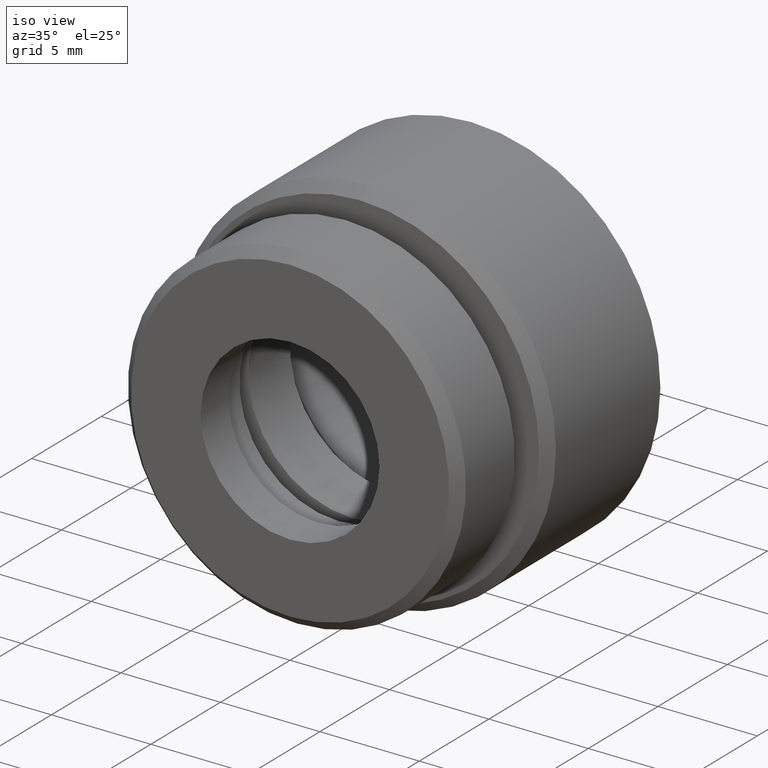
[diagram: clean part render]
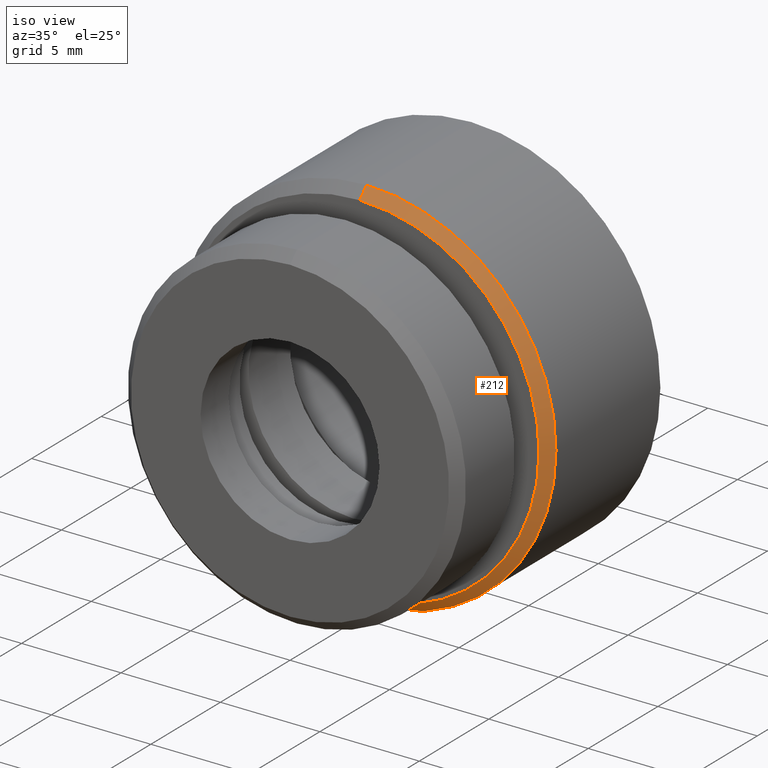
[diagram: same view with one face highlighted and labeled with its STEP entity id]
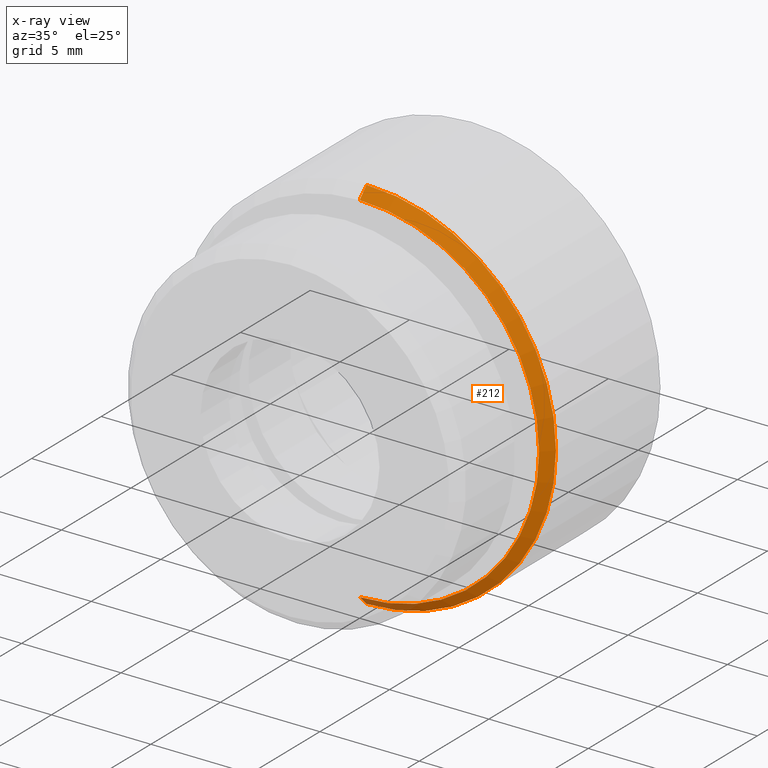
[diagram: x-ray of the same camera — body ghosted, the highlighted face saturated]
A machine part, iso view. The second image highlights one B-rep face of the part: STEP entity #212.
The next image is the same camera in x-ray: the body ghosted, the highlighted face saturated — about 3% of this face is hidden behind the body in this view.
In plain terms, the highlighted conical surface has half-angle 45 deg.
Its self-contained STEP definition (entity closure, byte-faithful):
#48 = AXIS2_PLACEMENT_3D ( 'NONE', #568, #593, #903 ) ;
#133 = ORIENTED_EDGE ( 'NONE', *, *, #234, .F. ) ;
#147 = EDGE_CURVE ( 'NONE', #681, #757, #1087, .T. ) ;
#150 = CARTESIAN_POINT ( 'NONE',  ( 0.0000000000000000000, 5.499999999999999100, 9.525000000000000400 ) ) ;
#212 = ADVANCED_FACE ( 'NONE', ( #444 ), #818, .T. ) ;
#234 = EDGE_CURVE ( 'NONE', #825, #1023, #791, .T. ) ;
#255 = ORIENTED_EDGE ( 'NONE', *, *, #349, .T. ) ;
#272 = EDGE_CURVE ( 'NONE', #681, #825, #740, .T. ) ;
#317 = CARTESIAN_POINT ( 'NONE',  ( 0.0000000000000000000, 5.000000000000000900, 0.0000000000000000000 ) ) ;
#349 = EDGE_CURVE ( 'NONE', #757, #1023, #413, .T. ) ;
#368 = DIRECTION ( 'NONE',  ( 8.659560562354955000E-017, 0.7071067811865456900, -0.7071067811865493500 ) ) ;
#413 = CIRCLE ( 'NONE', #938, 9.525000000000000400 ) ;
#416 = CARTESIAN_POINT ( 'NONE',  ( 0.0000000000000000000, 5.499999999999999100, 0.0000000000000000000 ) ) ;
#419 = DIRECTION ( 'NONE',  ( -0.0000000000000000000, -1.000000000000000000, -0.0000000000000000000 ) ) ;
#427 = DIRECTION ( 'NONE',  ( 0.0000000000000000000, 0.0000000000000000000, -1.000000000000000000 ) ) ;
#444 = FACE_OUTER_BOUND ( 'NONE', #1041, .T. ) ;
#516 = ORIENTED_EDGE ( 'NONE', *, *, #147, .T. ) ;
#568 = CARTESIAN_POINT ( 'NONE',  ( 0.0000000000000000000, 5.000000000000000900, 0.0000000000000000000 ) ) ;
#587 = DIRECTION ( 'NONE',  ( -0.0000000000000000000, -1.000000000000000000, -0.0000000000000000000 ) ) ;
#591 = DIRECTION ( 'NONE',  ( 0.0000000000000000000, 0.0000000000000000000, -1.000000000000000000 ) ) ;
#593 = DIRECTION ( 'NONE',  ( 0.0000000000000000000, 1.000000000000000000, 0.0000000000000000000 ) ) ;
#613 = CARTESIAN_POINT ( 'NONE',  ( 0.0000000000000000000, 5.000000000000000900, 9.025000000000000400 ) ) ;
#681 = VERTEX_POINT ( 'NONE', #895 ) ;
#712 = CARTESIAN_POINT ( 'NONE',  ( 0.0000000000000000000, 5.000000000000000900, 9.025000000000000400 ) ) ;
#740 = CIRCLE ( 'NONE', #1079, 9.025000000000000400 ) ;
#749 = DIRECTION ( 'NONE',  ( 0.0000000000000000000, 0.7071067811865456900, 0.7071067811865493500 ) ) ;
#757 = VERTEX_POINT ( 'NONE', #780 ) ;
#780 = CARTESIAN_POINT ( 'NONE',  ( 1.166476076187854000E-015, 5.499999999999999100, -9.525000000000000400 ) ) ;
#782 = CARTESIAN_POINT ( 'NONE',  ( 1.105243736230486400E-015, 5.000000000000000900, -9.025000000000000400 ) ) ;
#791 = LINE ( 'NONE', #712, #816 ) ;
#816 = VECTOR ( 'NONE', #749, 1000.000000000000000 ) ;
#818 = CONICAL_SURFACE ( 'NONE', #48, 9.025000000000000400, 0.7853981633974509400 ) ;
#825 = VERTEX_POINT ( 'NONE', #613 ) ;
#895 = CARTESIAN_POINT ( 'NONE',  ( 1.135859906209170000E-015, 5.000000000000000900, -9.025000000000000400 ) ) ;
#903 = DIRECTION ( 'NONE',  ( 0.0000000000000000000, 0.0000000000000000000, 1.000000000000000000 ) ) ;
#938 = AXIS2_PLACEMENT_3D ( 'NONE', #416, #419, #427 ) ;
#948 = ORIENTED_EDGE ( 'NONE', *, *, #272, .F. ) ;
#1023 = VERTEX_POINT ( 'NONE', #150 ) ;
#1041 = EDGE_LOOP ( 'NONE', ( #948, #516, #255, #133 ) ) ;
#1079 = AXIS2_PLACEMENT_3D ( 'NONE', #317, #587, #591 ) ;
#1087 = LINE ( 'NONE', #782, #1089 ) ;
#1089 = VECTOR ( 'NONE', #368, 1000.000000000000000 ) ;